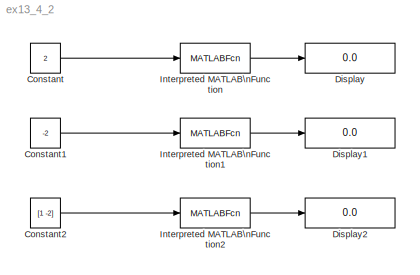
MODEL ex13_4_2
KIND model
BLOCK [Constant] Constant
  SID = 1
  Value = 2
BLOCK [Constant] Constant1
  SID = 9
  Value = -2
BLOCK [Constant] Constant2
  SID = 12
  Value = [1 -2]
BLOCK [Display] Display
  Decimation = 1
  Lockdown = off
  Ports = [1]
  SID = 3
BLOCK [Display] Display1
  Decimation = 1
  Lockdown = off
  Ports = [1]
  SID = 10
BLOCK [Display] Display2
  Decimation = 1
  Lockdown = off
  Ports = [1]
  SID = 13
BLOCK [MATLABFcn] Interpreted MATLAB\nFunction
  MATLABFcn = functief
  Ports = [1, 1]
  SID = 5
BLOCK [MATLABFcn] Interpreted MATLAB\nFunction1
  MATLABFcn = functief
  Ports = [1, 1]
  SID = 11
BLOCK [MATLABFcn] Interpreted MATLAB\nFunction2
  MATLABFcn = functieg(u(1), u(2))
  Ports = [1, 1]
  SID = 14
LINE Constant1:1 -> Interpreted MATLAB\nFunction1:1
LINE Constant2:1 -> Interpreted MATLAB\nFunction2:1
LINE Constant:1 -> Interpreted MATLAB\nFunction:1
LINE Interpreted MATLAB\nFunction1:1 -> Display1:1
LINE Interpreted MATLAB\nFunction2:1 -> Display2:1
LINE Interpreted MATLAB\nFunction:1 -> Display:1
